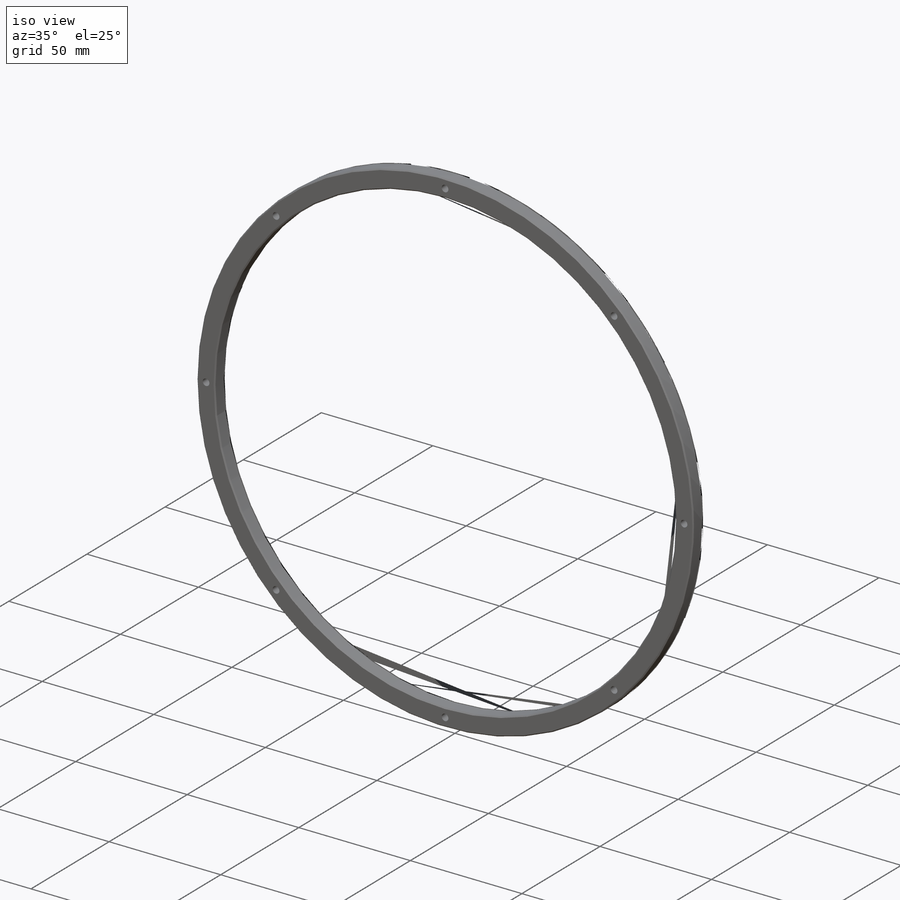
[diagram: iso view]
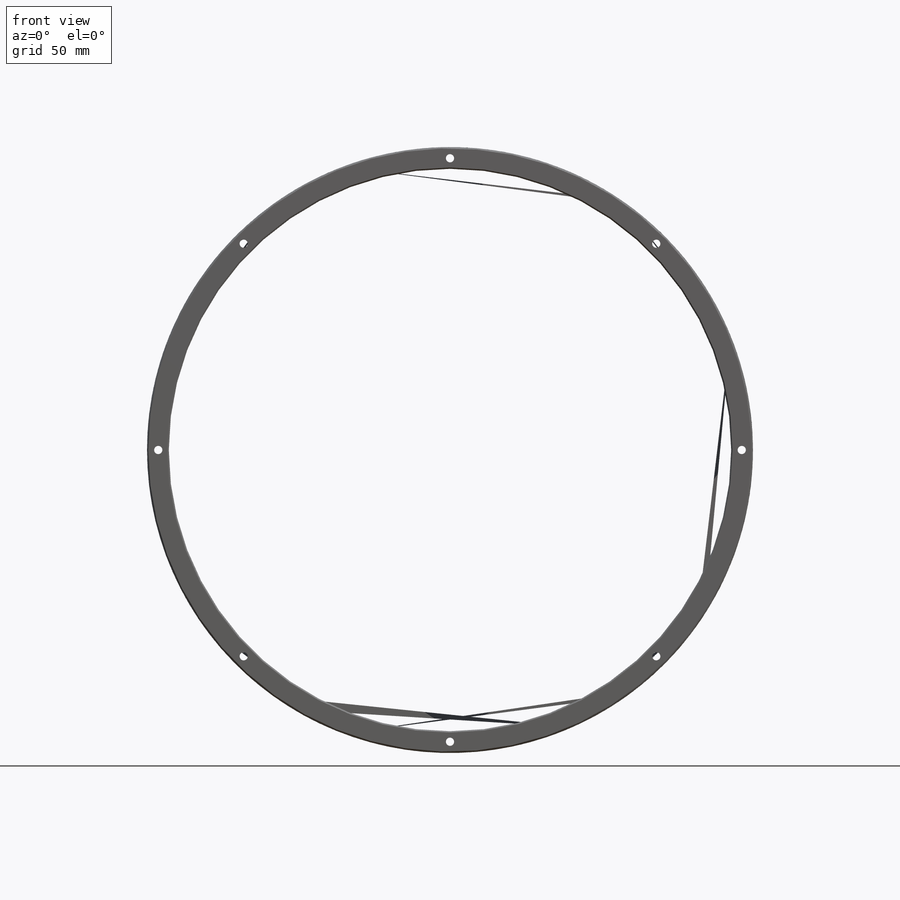
[diagram: front view]
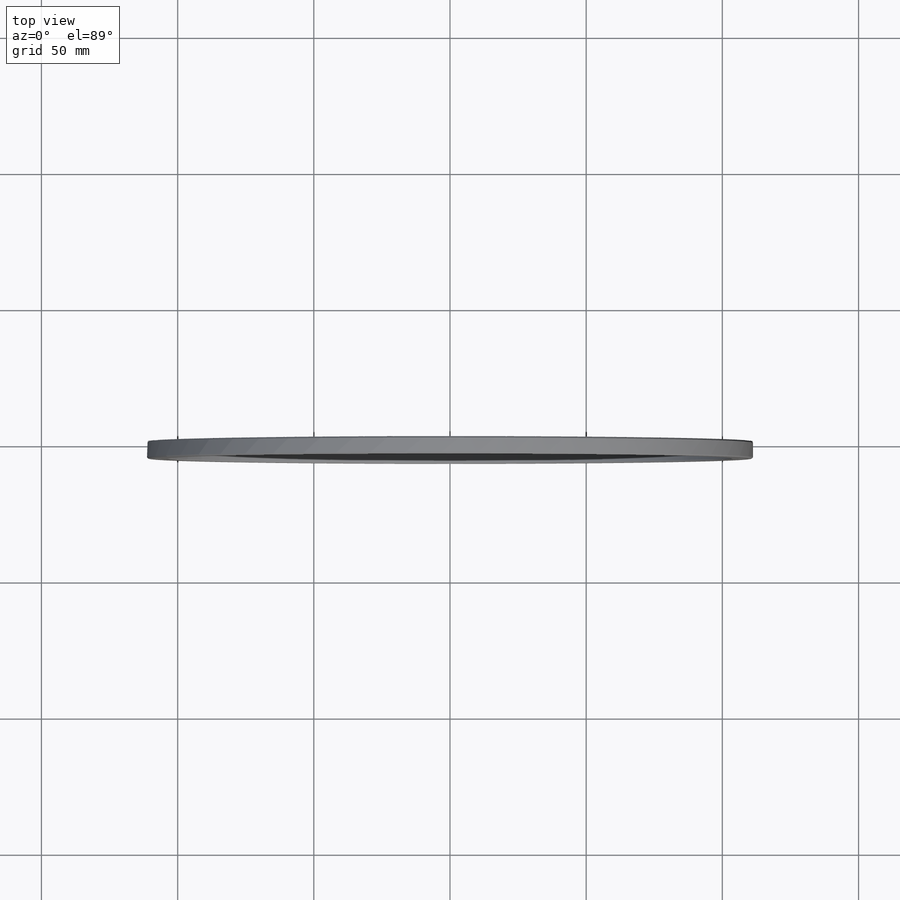
[diagram: top view]
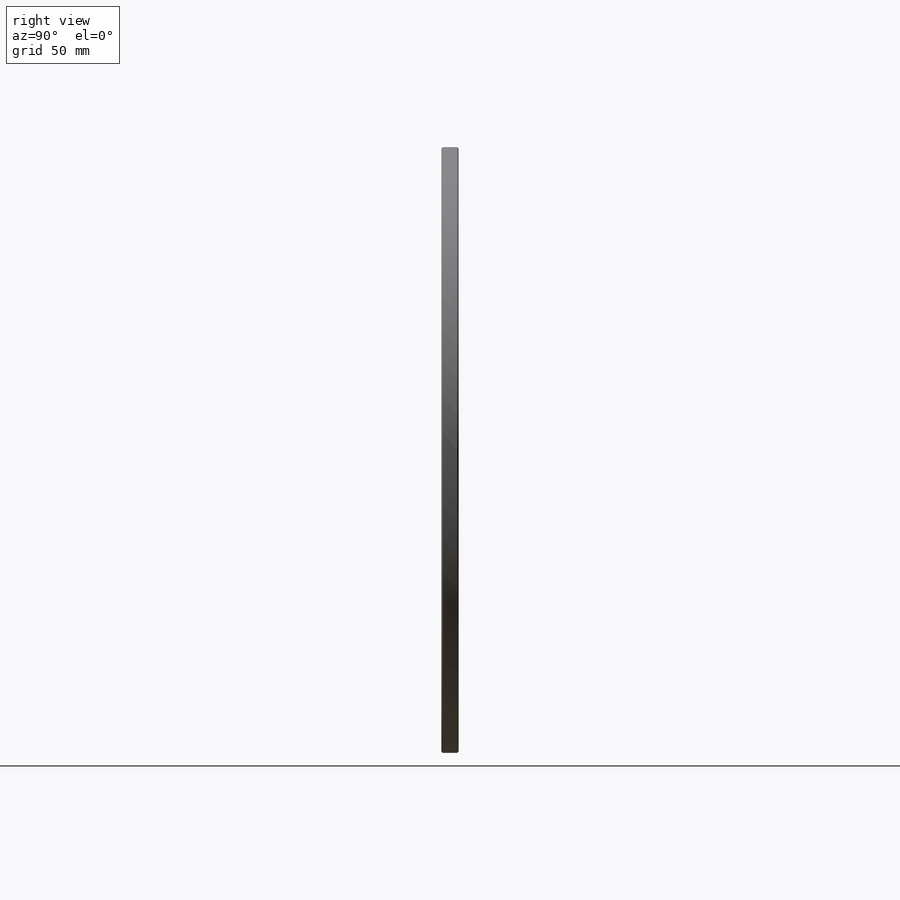
[diagram: right view]
SOLIDWORKS PART (.sldprt)
format: sldprt  version: not decoded by parser v0  size: 496,128 bytes
history: native  units: mm
features: sketch x5, hole x2, pattern_circular x2, thread x2, material x1, extrude x1, chamfer x1 (+11 scaffold rows collapsed)
feature tree (25):
  scaffold x11  (default folders/planes/origin — collapsed)
  material  "Polyetheretherketone (PEEK)"
  sketch  "Sketch1"  dims[D1=206.5mm D2=8.0mm]
  extrude  "Extrude1"  Depth=6.35mm
  hole  "M3x0.5 Tapped Hole1"  Diameter=3mm Depth=6.35mm
  sketch  "Sketch5"  dims[D1=107.125mm]
  sketch  "Sketch6"  dims[hole-wizard template sketch: 60 standard entries collapsed; hole parameters kept: c18.Thru Tap Drill Depth=6.35mm]
  pattern_circular  "CirPattern1"  Count=8 Angle=360deg
  chamfer  "Chamfer1"  Distance=0.5mm Angle=45deg
  hole  "#10-24 Tapped Hole1"  Diameter=3.7973mm Depth=6.35mm
  sketch  "Sketch8"  dims[D1=15.83mm]
  sketch  "Sketch9"  dims[hole-wizard template sketch: 60 standard entries collapsed; hole parameters kept: c18.Thru Tap Drill Depth=6.35mm]
  thread  "Hole Thread1"  Diameter=4.826mm  [1 undecoded]
  thread  "Hole Thread2"  Diameter=4.826mm  [1 undecoded]
  pattern_circular  "CirPattern2"  Count=4 Angle=360deg
decode coverage: 13 of 13 modeling features carry decoded parameters
note: ~ marks probable driven/reference dimensions
note: 2 parameter values undecoded
note: suppression state not decoded; provenance and decode notes live in map.json
